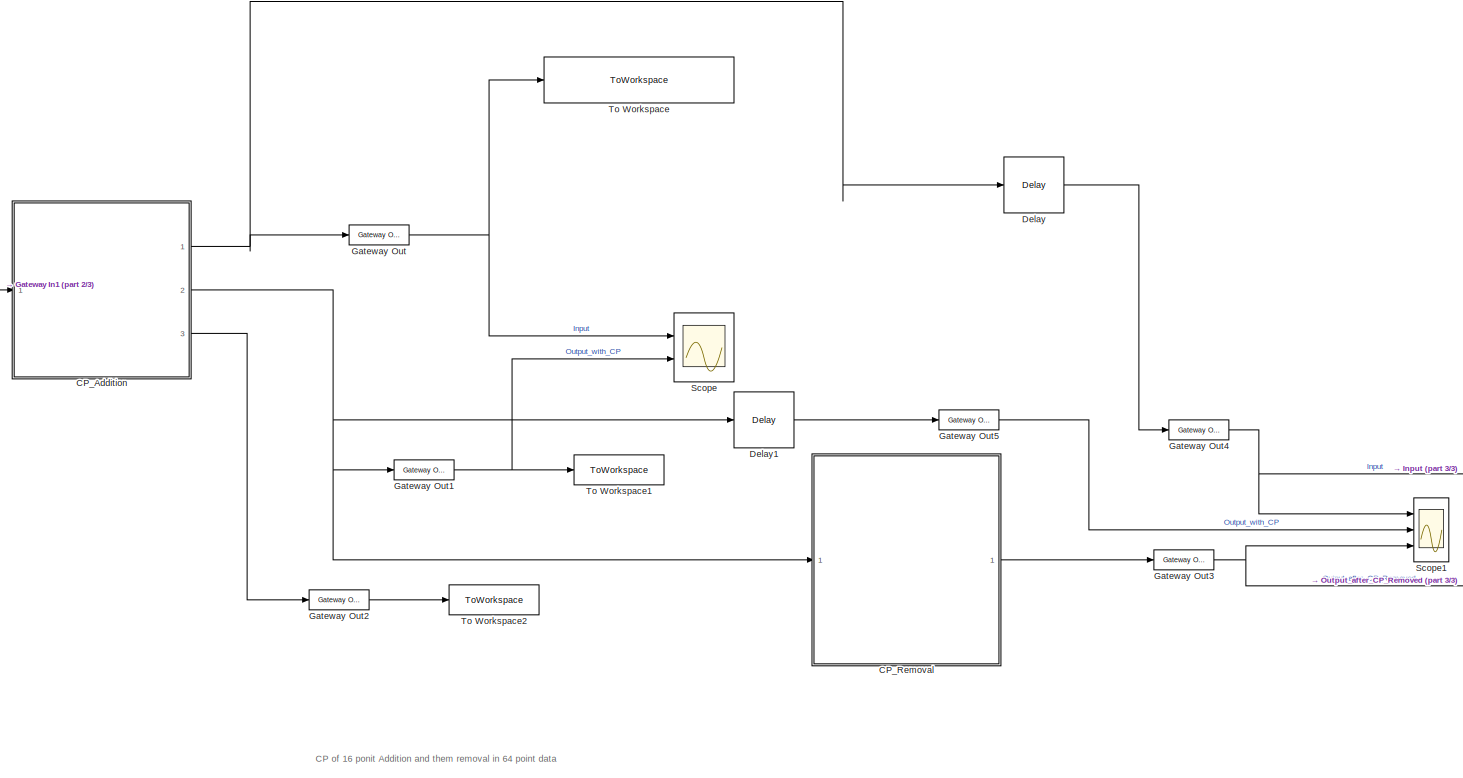
[diagram: root canvas - part 1/3, center side, full height]
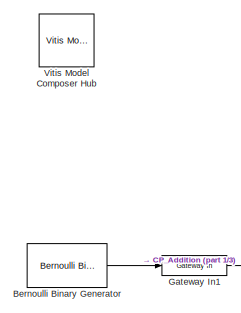
[diagram: root canvas - part 2/3, top left region]
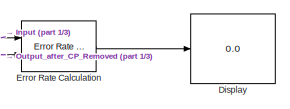
[diagram: root canvas - part 3/3, bottom right region]
MODEL slx_2d6f38cac65e
KIND model
CONFIG AbsTol = auto
CONFIG EnableMultiTasking = off
CONFIG FixedStep = auto
CONFIG MaxStep = auto
CONFIG MinStep = auto
CONFIG RelTol = 1e-3
CONFIG SampleTimeConstraint = Unconstrained
CONFIG SolverName = VariableStepAuto
CONFIG StartTime = 0.0
CONFIG StopTime = 5000
BLOCK [Reference] Bernoulli Binary Generator  REF=commrandsrc3/Bernoulli Binary
Generator
  Ports = [0, 1]
  SourceBlock = commrandsrc3/Bernoulli Binary\nGenerator
  SourceProductBaseCode = CM
  SourceType = Bernoulli Binary Generator
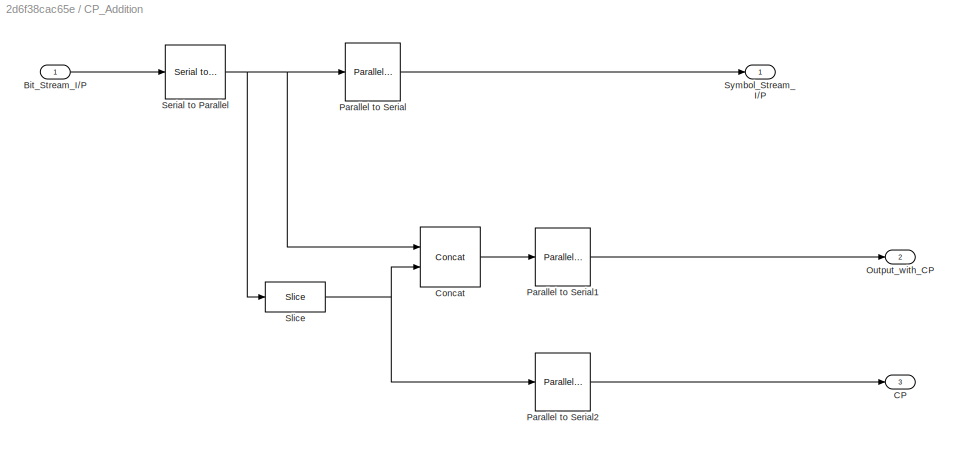
BLOCK [SubSystem] CP_Addition
  Ports = [1, 3]
  RequestExecContextInheritance = off
BLOCK [Inport] CP_Addition/Bit_Stream_I//P
BLOCK [Outport] CP_Addition/CP
  Port = 3
BLOCK [Reference] CP_Addition/Concat  REF=hdlBasic/Concat
  Ports = [2, 1]
  SourceBlock = hdlBasic/Concat
  SourceType = Bus Concatenator Block
BLOCK [Outport] CP_Addition/Output_with_CP
  Port = 2
BLOCK [Reference] CP_Addition/Parallel to Serial  REF=hdlBasic/Parallel to Serial
  Ports = [1, 1]
  SourceBlock = hdlBasic/Parallel to Serial
  SourceType = Parallel to Serial Converter Block
BLOCK [Reference] CP_Addition/Parallel to Serial1  REF=hdlBasic/Parallel to Serial
  Ports = [1, 1]
  SourceBlock = hdlBasic/Parallel to Serial
  SourceType = Parallel to Serial Converter Block
BLOCK [Reference] CP_Addition/Parallel to Serial2  REF=hdlBasic/Parallel to Serial
  Ports = [1, 1]
  SourceBlock = hdlBasic/Parallel to Serial
  SourceType = Parallel to Serial Converter Block
BLOCK [Reference] CP_Addition/Serial to Parallel  REF=hdlBasic/Serial to Parallel
  Ports = [1, 1]
  SourceBlock = hdlBasic/Serial to Parallel
  SourceType = Serial to Parallel Converter Block
BLOCK [Reference] CP_Addition/Slice  REF=hdlBasic/Slice
  Ports = [1, 1]
  SourceBlock = hdlBasic/Slice
  SourceType = Bit Slice Extractor Block
BLOCK [Outport] CP_Addition/Symbol_Stream_I//P
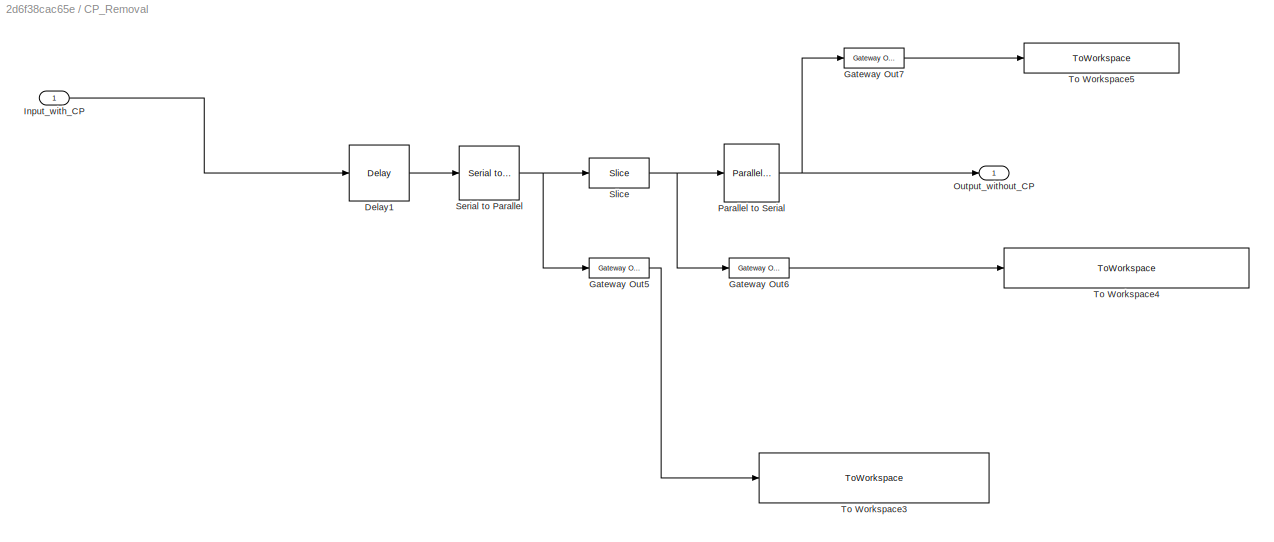
BLOCK [SubSystem] CP_Removal
  Ports = [1, 1]
  RequestExecContextInheritance = off
BLOCK [Reference] CP_Removal/Delay1  REF=hdlBasic/Delay
  Ports = [1, 1]
  SourceBlock = hdlBasic/Delay
  SourceType = Delay Block
BLOCK [Reference] CP_Removal/Gateway Out5  REF=hdlBasic/Gateway Out
  Ports = [1, 1]
  SourceBlock = hdlBasic/Gateway Out
  SourceType = Gateway Out Block
BLOCK [Reference] CP_Removal/Gateway Out6  REF=hdlBasic/Gateway Out
  Ports = [1, 1]
  SourceBlock = hdlBasic/Gateway Out
  SourceType = Gateway Out Block
BLOCK [Reference] CP_Removal/Gateway Out7  REF=hdlBasic/Gateway Out
  Ports = [1, 1]
  SourceBlock = hdlBasic/Gateway Out
  SourceType = Gateway Out Block
BLOCK [Inport] CP_Removal/Input_with_CP
BLOCK [Outport] CP_Removal/Output_without_CP
BLOCK [Reference] CP_Removal/Parallel to Serial  REF=hdlBasic/Parallel to Serial
  Ports = [1, 1]
  SourceBlock = hdlBasic/Parallel to Serial
  SourceType = Parallel to Serial Converter Block
BLOCK [Reference] CP_Removal/Serial to Parallel  REF=hdlBasic/Serial to Parallel
  Ports = [1, 1]
  SourceBlock = hdlBasic/Serial to Parallel
  SourceType = Serial to Parallel Converter Block
BLOCK [Reference] CP_Removal/Slice  REF=hdlBasic/Slice
  Ports = [1, 1]
  SourceBlock = hdlBasic/Slice
  SourceType = Bit Slice Extractor Block
BLOCK [ToWorkspace] CP_Removal/To Workspace3
  FixptAsFi = on
  MaxDataPoints = inf
  Ports = [1]
  SampleTime = -1
  SaveFormat = Timeseries
  VariableName = Collecting_320_bit_after_CP_addition
BLOCK [ToWorkspace] CP_Removal/To Workspace4
  FixptAsFi = on
  MaxDataPoints = inf
  Ports = [1]
  SampleTime = -1
  SaveFormat = Timeseries
  VariableName = accumlating_256_bit_after_removal_CP
BLOCK [ToWorkspace] CP_Removal/To Workspace5
  FixptAsFi = on
  MaxDataPoints = inf
  Ports = [1]
  SampleTime = -1
  SaveFormat = Timeseries
  VariableName = Output_after_CP_removal
BLOCK [Reference] Delay  REF=hdlBasic/Delay
  Ports = [1, 1]
  SourceBlock = hdlBasic/Delay
  SourceType = Delay Block
BLOCK [Reference] Delay1  REF=hdlBasic/Delay
  Ports = [1, 1]
  SourceBlock = hdlBasic/Delay
  SourceType = Delay Block
BLOCK [Display] Display
  Decimation = 1
  Ports = [1]
BLOCK [Reference] Error Rate Calculation  REF=commsink2/Error Rate
Calculation
  Ports = [2, 1]
  SourceBlock = commsink2/Error Rate\nCalculation
  SourceProductBaseCode = CM
  SourceType = Error Rate Calculation
BLOCK [Reference] Gateway In1  REF=hdlBasic/Gateway In
  Ports = [1, 1]
  SourceBlock = hdlBasic/Gateway In
  SourceType = Gateway In Block
BLOCK [Reference] Gateway Out  REF=hdlBasic/Gateway Out
  Ports = [1, 1]
  SourceBlock = hdlBasic/Gateway Out
  SourceType = Gateway Out Block
BLOCK [Reference] Gateway Out1  REF=hdlBasic/Gateway Out
  Ports = [1, 1]
  SourceBlock = hdlBasic/Gateway Out
  SourceType = Gateway Out Block
BLOCK [Reference] Gateway Out2  REF=hdlBasic/Gateway Out
  Ports = [1, 1]
  SourceBlock = hdlBasic/Gateway Out
  SourceType = Gateway Out Block
BLOCK [Reference] Gateway Out3  REF=hdlBasic/Gateway Out
  Ports = [1, 1]
  SourceBlock = hdlBasic/Gateway Out
  SourceType = Gateway Out Block
BLOCK [Reference] Gateway Out4  REF=hdlBasic/Gateway Out
  Ports = [1, 1]
  SourceBlock = hdlBasic/Gateway Out
  SourceType = Gateway Out Block
BLOCK [Reference] Gateway Out5  REF=hdlBasic/Gateway Out
  Ports = [1, 1]
  SourceBlock = hdlBasic/Gateway Out
  SourceType = Gateway Out Block
BLOCK [Scope] Scope
  Floating = off
  NumInputPorts = 2
  Ports = [2]
  ScopeSpecificationString = Simulink.scopes.TimeScopeBlockCfg('CurrentConfiguration', extmgr.ConfigurationSet(extmgr.Configuration('Core','General UI',true),extmgr.Configuration('Core','Source UI',true),extmgr.Configuration('Sources','WiredSimulink',true),extmgr.Configuration('Visuals','Time Domain',true,'SerializedDisplays',{struct('MinYLimReal','-1.875','MaxYLimReal','16.875','YLabelReal','','MinYLimMag','0.00000','MaxYLim...<+1988ch>
BLOCK [Scope] Scope1
  Floating = off
  NumInputPorts = 3
  Ports = [3]
  ScopeSpecificationString = Simulink.scopes.TimeScopeBlockCfg('CurrentConfiguration', extmgr.ConfigurationSet(extmgr.Configuration('Core','General UI',true),extmgr.Configuration('Core','Source UI',true),extmgr.Configuration('Sources','WiredSimulink',true,'DataLoggingVariableName','ScopeData1'),extmgr.Configuration('Visuals','Time Domain',true,'SerializedDisplays',{struct('MinYLimReal','-1.875','MaxYLimReal','16.875','YLabelR...<+2757ch>
BLOCK [ToWorkspace] To Workspace
  FixptAsFi = on
  MaxDataPoints = inf
  Ports = [1]
  SampleTime = -1
  SaveFormat = Timeseries
  VariableName = Original_symbol_Input
BLOCK [ToWorkspace] To Workspace1
  FixptAsFi = on
  MaxDataPoints = inf
  Ports = [1]
  SampleTime = -1
  SaveFormat = Timeseries
  VariableName = Output_after_CP
BLOCK [ToWorkspace] To Workspace2
  FixptAsFi = on
  MaxDataPoints = inf
  Ports = [1]
  SampleTime = -1
  SaveFormat = Timeseries
  VariableName = CP
BLOCK [Reference] Vitis Model Composer Hub  REF=vmcUtilities/Vitis Model Composer Hub
  Ports = []
  SourceBlock = vmcUtilities/Vitis Model Composer Hub
  SourceType = Implementation
  Tag = genX
  UserDataPersistent = on
ANNOTATION (root): CP of 16 ponit Addition and them removal in 64 point data
LINE Bernoulli Binary Generator:1 -> Gateway In1:1
LINE CP_Addition/Bit_Stream_I//P:1 -> CP_Addition/Serial to Parallel:1
LINE CP_Addition/Concat:1 -> CP_Addition/Parallel to Serial1:1
LINE CP_Addition/Parallel to Serial1:1 -> CP_Addition/Output_with_CP:1
LINE CP_Addition/Parallel to Serial2:1 -> CP_Addition/CP:1
LINE CP_Addition/Parallel to Serial:1 -> CP_Addition/Symbol_Stream_I//P:1
NET CP_Addition/Serial to Parallel:1 -> CP_Addition/Concat:1, CP_Addition/Parallel to Serial:1, CP_Addition/Slice:1
NET CP_Addition/Slice:1 -> CP_Addition/Concat:2, CP_Addition/Parallel to Serial2:1
NET CP_Addition:1 -> Delay:1, Gateway Out:1
NET CP_Addition:2 -> CP_Removal:1, Delay1:1, Gateway Out1:1
LINE CP_Addition:3 -> Gateway Out2:1
LINE CP_Removal/Delay1:1 -> CP_Removal/Serial to Parallel:1
LINE CP_Removal/Gateway Out5:1 -> CP_Removal/To Workspace3:1
LINE CP_Removal/Gateway Out6:1 -> CP_Removal/To Workspace4:1
LINE CP_Removal/Gateway Out7:1 -> CP_Removal/To Workspace5:1
LINE CP_Removal/Input_with_CP:1 -> CP_Removal/Delay1:1
NET CP_Removal/Parallel to Serial:1 -> CP_Removal/Gateway Out7:1, CP_Removal/Output_without_CP:1
NET CP_Removal/Serial to Parallel:1 -> CP_Removal/Gateway Out5:1, CP_Removal/Slice:1
NET CP_Removal/Slice:1 -> CP_Removal/Gateway Out6:1, CP_Removal/Parallel to Serial:1
LINE CP_Removal:1 -> Gateway Out3:1
LINE Delay1:1 -> Gateway Out5:1
LINE Delay:1 -> Gateway Out4:1
LINE Error Rate Calculation:1 -> Display:1
LINE Gateway In1:1 -> CP_Addition:1
NET Gateway Out1:1 -> Scope:2, To Workspace1:1
LINE Gateway Out2:1 -> To Workspace2:1
NET Gateway Out3:1 -> Error Rate Calculation:2, Scope1:3
NET Gateway Out4:1 -> Error Rate Calculation:1, Scope1:1
LINE Gateway Out5:1 -> Scope1:2
NET Gateway Out:1 -> Scope:1, To Workspace:1
note: NET lines group one-source signal fan-out (src -> all destinations, sorted); 1:1 wires keep LINE
